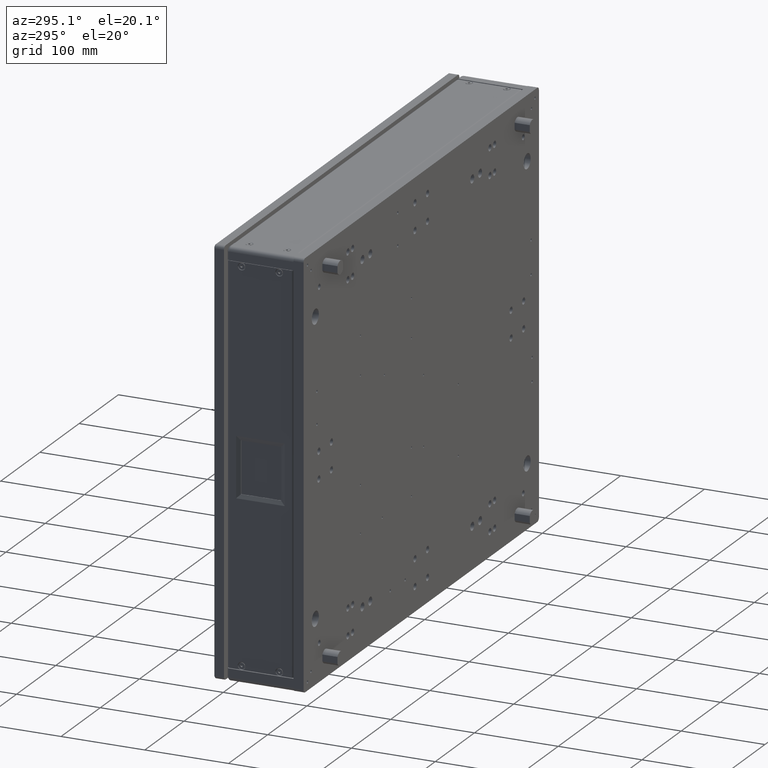
[diagram: clean part render]
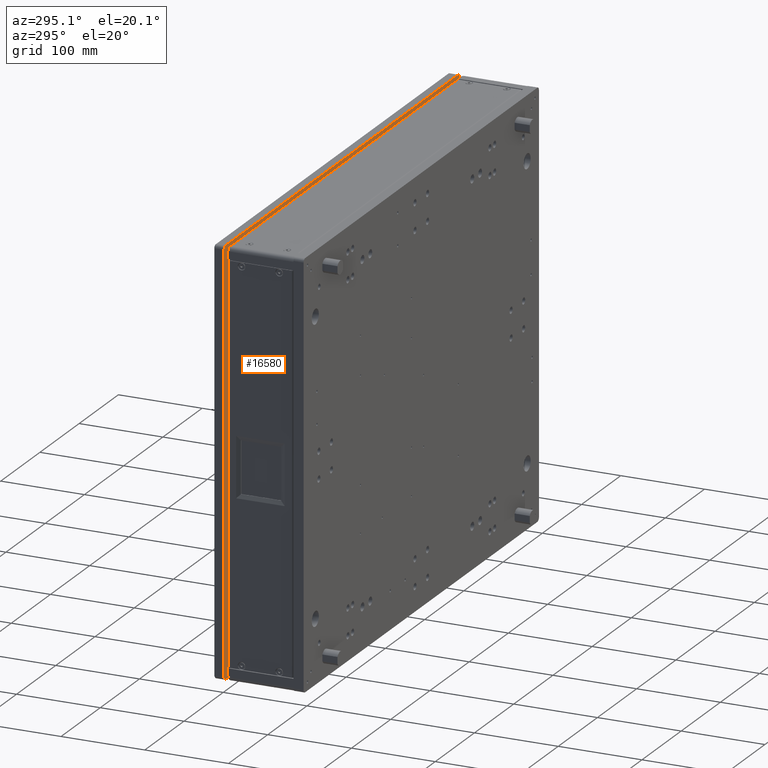
[diagram: same view with one face highlighted and labeled with its STEP entity id]
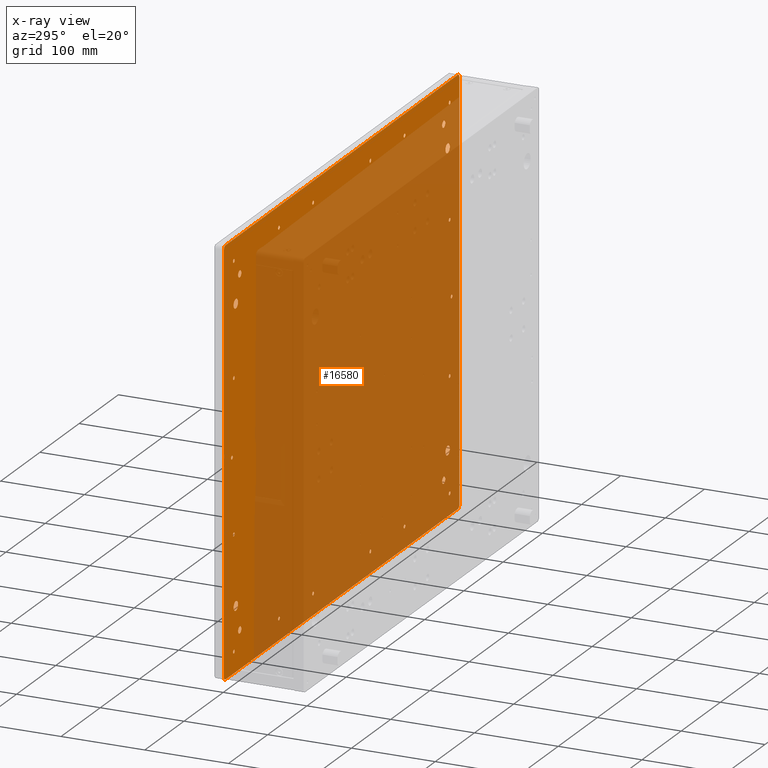
[diagram: x-ray of the same camera — body ghosted, the highlighted face saturated]
A machine part, auxiliary view. The second image highlights one B-rep face of the part: STEP entity #16580.
The next image is the same camera in x-ray: the body ghosted, the highlighted face saturated — about 82% of this face is hidden behind the body in this view.
In plain terms, the highlighted planar face has unit normal (0, -1, 0).
Its self-contained STEP definition (entity closure, byte-faithful):
#120 = AXIS2_PLACEMENT_3D ( 'NONE', #31012, #9649, #10043 ) ;
#465 = CIRCLE ( 'NONE', #11860, 4.000000000000003553 ) ;
#471 = CIRCLE ( 'NONE', #21343, 2.099999999999990763 ) ;
#688 = CIRCLE ( 'NONE', #26612, 4.000000000000003553 ) ;
#835 = DIRECTION ( 'NONE',  ( -2.376672073132158167E-16, 1.000000000000000000, -8.030019939456232739E-17 ) ) ;
#854 = DIRECTION ( 'NONE',  ( 0.000000000000000000, 0.000000000000000000, -1.000000000000000000 ) ) ;
#982 = AXIS2_PLACEMENT_3D ( 'NONE', #38017, #22972, #17039 ) ;
#1137 = CIRCLE ( 'NONE', #31485, 2.099999999999990763 ) ;
#1162 = ORIENTED_EDGE ( 'NONE', *, *, #11024, .T. ) ;
#1223 = DIRECTION ( 'NONE',  ( 0.000000000000000000, 0.000000000000000000, -1.000000000000000000 ) ) ;
#1308 = DIRECTION ( 'NONE',  ( 2.376672073132158167E-16, -1.000000000000000000, 8.030019939456232739E-17 ) ) ;
#1324 = CIRCLE ( 'NONE', #23468, 2.099999999999990763 ) ;
#1492 = EDGE_LOOP ( 'NONE', ( #3912 ) ) ;
#1541 = CARTESIAN_POINT ( 'NONE',  ( -270.5487244020133062, 101.1371811005062824, 320.0000000000001705 ) ) ;
#1546 = DIRECTION ( 'NONE',  ( -2.376672073132158167E-16, 1.000000000000000000, -8.030019939456232739E-17 ) ) ;
#1603 = VERTEX_POINT ( 'NONE', #38442 ) ;
#1666 = VERTEX_POINT ( 'NONE', #38308 ) ;
#1709 = VERTEX_POINT ( 'NONE', #31592 ) ;
#1812 = EDGE_CURVE ( 'NONE', #5385, #5385, #9594, .T. ) ;
#2059 = CARTESIAN_POINT ( 'NONE',  ( -270.5487244020133062, 101.1371811005062824, 317.9000000000002046 ) ) ;
#2290 = DIRECTION ( 'NONE',  ( 0.000000000000000000, 0.000000000000000000, -1.000000000000000000 ) ) ;
#2314 = DIRECTION ( 'NONE',  ( 0.000000000000000000, 0.000000000000000000, -1.000000000000000000 ) ) ;
#2325 = EDGE_LOOP ( 'NONE', ( #34344 ) ) ;
#2421 = CARTESIAN_POINT ( 'NONE',  ( -265.5487244020134199, 101.1371811005062966, 376.5000000000001705 ) ) ;
#2577 = DIRECTION ( 'NONE',  ( -1.066854937725736117E-16, -8.030019939456235204E-17, -1.000000000000000000 ) ) ;
#2624 = AXIS2_PLACEMENT_3D ( 'NONE', #33721, #19081, #854 ) ;
#2669 = FACE_BOUND ( 'NONE', #37529, .T. ) ;
#2723 = DIRECTION ( 'NONE',  ( 0.000000000000000000, 0.000000000000000000, -1.000000000000000000 ) ) ;
#2866 = EDGE_CURVE ( 'NONE', #27012, #16867, #26481, .T. ) ;
#2913 = VERTEX_POINT ( 'NONE', #11439 ) ;
#2938 = CIRCLE ( 'NONE', #22600, 2.099999999999990763 ) ;
#3067 = ORIENTED_EDGE ( 'NONE', *, *, #39010, .T. ) ;
#3634 = CIRCLE ( 'NONE', #25793, 2.099999999999990763 ) ;
#3841 = DIRECTION ( 'NONE',  ( -1.066854937725736117E-16, -8.030019939456235204E-17, -1.000000000000000000 ) ) ;
#3850 = ORIENTED_EDGE ( 'NONE', *, *, #1812, .T. ) ;
#3893 = ORIENTED_EDGE ( 'NONE', *, *, #36674, .T. ) ;
#3912 = ORIENTED_EDGE ( 'NONE', *, *, #11577, .T. ) ;
#4530 = CIRCLE ( 'NONE', #120, 4.000000000000003553 ) ;
#4582 = ORIENTED_EDGE ( 'NONE', *, *, #23823, .T. ) ;
#4869 = EDGE_LOOP ( 'NONE', ( #21661 ) ) ;
#4976 = CARTESIAN_POINT ( 'NONE',  ( -295.5487244020133062, 101.1371811005062966, 553.3565087996971670 ) ) ;
#5085 = DIRECTION ( 'NONE',  ( 2.376672073132158167E-16, -1.000000000000000000, 8.030019939456232739E-17 ) ) ;
#5096 = AXIS2_PLACEMENT_3D ( 'NONE', #18915, #34332, #3841 ) ;
#5385 = VERTEX_POINT ( 'NONE', #2421 ) ;
#5439 = DIRECTION ( 'NONE',  ( 1.066854937725736117E-16, 8.030019939456235204E-17, 1.000000000000000000 ) ) ;
#5461 = DIRECTION ( 'NONE',  ( 0.000000000000000000, 0.000000000000000000, -1.000000000000000000 ) ) ;
#5529 = DIRECTION ( 'NONE',  ( -2.376672073132158167E-16, 1.000000000000000000, -8.030019939456232739E-17 ) ) ;
#5597 = CARTESIAN_POINT ( 'NONE',  ( -68.54872440201322092, 101.1371811005063250, 317.9000000000000909 ) ) ;
#5683 = VERTEX_POINT ( 'NONE', #35989 ) ;
#5698 = DIRECTION ( 'NONE',  ( -2.376672073132158167E-16, 1.000000000000000000, -8.030019939456232739E-17 ) ) ;
#5729 = EDGE_CURVE ( 'NONE', #1603, #1603, #36781, .T. ) ;
#5788 = EDGE_CURVE ( 'NONE', #32288, #32288, #7711, .T. ) ;
#5990 = CARTESIAN_POINT ( 'NONE',  ( 304.4512755979866370, 101.1371811005064103, 299.0000000000001137 ) ) ;
#6063 = CARTESIAN_POINT ( 'NONE',  ( -265.5487244020134199, 101.1371811005062966, 371.0000000000001705 ) ) ;
#6083 = CIRCLE ( 'NONE', #12421, 2.099999999999990763 ) ;
#6439 = FACE_BOUND ( 'NONE', #13416, .T. ) ;
#6656 = EDGE_CURVE ( 'NONE', #17827, #17827, #22305, .T. ) ;
#6723 = CARTESIAN_POINT ( 'NONE',  ( 279.4512755979866938, 101.1371811005064245, 452.9000000000000909 ) ) ;
#6734 = CIRCLE ( 'NONE', #29481, 2.099999999999990763 ) ;
#6817 = CIRCLE ( 'NONE', #35281, 2.099999999999990763 ) ;
#6818 = ORIENTED_EDGE ( 'NONE', *, *, #26282, .T. ) ;
#6869 = VERTEX_POINT ( 'NONE', #37343 ) ;
#7082 = DIRECTION ( 'NONE',  ( 0.000000000000000000, 0.000000000000000000, -1.000000000000000000 ) ) ;
#7154 = CARTESIAN_POINT ( 'NONE',  ( 264.4512755979866938, 101.1371811005064103, 340.0000000000001705 ) ) ;
#7248 = DIRECTION ( 'NONE',  ( 0.000000000000000000, 0.000000000000000000, -1.000000000000000000 ) ) ;
#7531 = VECTOR ( 'NONE', #31819, 1000.000000000000000 ) ;
#7711 = CIRCLE ( 'NONE', #22890, 2.099999999999990763 ) ;
#7883 = DIRECTION ( 'NONE',  ( -2.376672073132158167E-16, 1.000000000000000000, -8.030019939456232739E-17 ) ) ;
#8026 = AXIS2_PLACEMENT_3D ( 'NONE', #24619, #835, #9566 ) ;
#8429 = DIRECTION ( 'NONE',  ( 0.000000000000000000, 0.000000000000000000, -1.000000000000000000 ) ) ;
#8511 = CARTESIAN_POINT ( 'NONE',  ( 279.4512755979866938, 101.1371811005064103, 320.0000000000000568 ) ) ;
#8640 = ORIENTED_EDGE ( 'NONE', *, *, #23672, .T. ) ;
#8675 = AXIS2_PLACEMENT_3D ( 'NONE', #1541, #25919, #10853 ) ;
#8826 = FACE_BOUND ( 'NONE', #10625, .T. ) ;
#9041 = DIRECTION ( 'NONE',  ( 0.000000000000000000, 0.000000000000000000, 1.000000000000000000 ) ) ;
#9424 = FACE_BOUND ( 'NONE', #20169, .T. ) ;
#9566 = DIRECTION ( 'NONE',  ( 0.000000000000000000, 0.000000000000000000, -1.000000000000000000 ) ) ;
#9594 = CIRCLE ( 'NONE', #34258, 5.500000000000005329 ) ;
#9649 = DIRECTION ( 'NONE',  ( 2.376672073132158167E-16, -1.000000000000000000, 8.030019939456232739E-17 ) ) ;
#9784 = CIRCLE ( 'NONE', #30013, 4.000000000000003553 ) ;
#9830 = ORIENTED_EDGE ( 'NONE', *, *, #37081, .T. ) ;
#9903 = CARTESIAN_POINT ( 'NONE',  ( -291.5487244020132493, 101.1371811005063250, 795.0000000000001137 ) ) ;
#9978 = CARTESIAN_POINT ( 'NONE',  ( -68.54872440201322092, 101.1371811005063250, 320.0000000000000568 ) ) ;
#10043 = DIRECTION ( 'NONE',  ( 0.000000000000000000, 0.000000000000000000, -1.000000000000000000 ) ) ;
#10061 = LINE ( 'NONE', #19362, #7531 ) ;
#10067 = VERTEX_POINT ( 'NONE', #36601 ) ;
#10086 = ORIENTED_EDGE ( 'NONE', *, *, #19869, .T. ) ;
#10170 = EDGE_CURVE ( 'NONE', #23343, #23343, #14279, .T. ) ;
#10428 = EDGE_CURVE ( 'NONE', #16649, #35122, #23220, .T. ) ;
#10614 = ORIENTED_EDGE ( 'NONE', *, *, #33082, .T. ) ;
#10625 = EDGE_LOOP ( 'NONE', ( #17945 ) ) ;
#10766 = ORIENTED_EDGE ( 'NONE', *, *, #10170, .T. ) ;
#10853 = DIRECTION ( 'NONE',  ( 0.000000000000000000, 0.000000000000000000, -1.000000000000000000 ) ) ;
#10951 = EDGE_CURVE ( 'NONE', #2913, #2913, #6734, .T. ) ;
#10994 = EDGE_LOOP ( 'NONE', ( #19399 ) ) ;
#11024 = EDGE_CURVE ( 'NONE', #5683, #5683, #6083, .T. ) ;
#11258 = VERTEX_POINT ( 'NONE', #20516 ) ;
#11424 = EDGE_LOOP ( 'NONE', ( #34943 ) ) ;
#11439 = CARTESIAN_POINT ( 'NONE',  ( 77.45127559798673644, 101.1371811005063961, 767.9000000000000909 ) ) ;
#11577 = EDGE_CURVE ( 'NONE', #15009, #15009, #17510, .T. ) ;
#11589 = FACE_BOUND ( 'NONE', #15789, .T. ) ;
#11860 = AXIS2_PLACEMENT_3D ( 'NONE', #37341, #1308, #7248 ) ;
#11986 = FACE_BOUND ( 'NONE', #1492, .T. ) ;
#12147 = ORIENTED_EDGE ( 'NONE', *, *, #21381, .T. ) ;
#12421 = AXIS2_PLACEMENT_3D ( 'NONE', #21729, #5698, #2723 ) ;
#12423 = CIRCLE ( 'NONE', #33888, 4.000000000000003553 ) ;
#12441 = DIRECTION ( 'NONE',  ( -2.376672073132158167E-16, 1.000000000000000000, -8.030019939456232739E-17 ) ) ;
#12557 = CARTESIAN_POINT ( 'NONE',  ( 284.4512755979865801, 101.1371811005064245, 545.0000000000001137 ) ) ;
#12563 = DIRECTION ( 'NONE',  ( -2.376672073132158167E-16, 1.000000000000000000, -8.030019939456232739E-17 ) ) ;
#12846 = EDGE_CURVE ( 'NONE', #6869, #6869, #1137, .T. ) ;
#12865 = VERTEX_POINT ( 'NONE', #28300 ) ;
#12914 = AXIS2_PLACEMENT_3D ( 'NONE', #38751, #16161, #18743 ) ;
#13416 = EDGE_LOOP ( 'NONE', ( #9830 ) ) ;
#13436 = DIRECTION ( 'NONE',  ( 0.000000000000000000, 0.000000000000000000, 1.000000000000000000 ) ) ;
#13462 = ORIENTED_EDGE ( 'NONE', *, *, #21647, .T. ) ;
#13605 = CARTESIAN_POINT ( 'NONE',  ( 164.4512755979867791, 101.1371811005063819, 317.9000000000002046 ) ) ;
#13760 = ORIENTED_EDGE ( 'NONE', *, *, #16749, .T. ) ;
#13774 = CARTESIAN_POINT ( 'NONE',  ( 279.4512755979866938, 101.1371811005064103, 317.9000000000000909 ) ) ;
#13859 = EDGE_CURVE ( 'NONE', #11258, #27012, #10061, .T. ) ;
#13903 = EDGE_CURVE ( 'NONE', #28432, #28432, #6817, .T. ) ;
#13962 = EDGE_CURVE ( 'NONE', #1709, #1709, #38464, .T. ) ;
#14045 = VERTEX_POINT ( 'NONE', #23901 ) ;
#14083 = CARTESIAN_POINT ( 'NONE',  ( 264.4512755979866938, 101.1371811005064103, 336.0000000000001705 ) ) ;
#14213 = CARTESIAN_POINT ( 'NONE',  ( -155.5487244020133346, 101.1371811005063108, 320.0000000000001705 ) ) ;
#14239 = DIRECTION ( 'NONE',  ( 0.000000000000000000, 0.000000000000000000, -1.000000000000000000 ) ) ;
#14279 = CIRCLE ( 'NONE', #23757, 2.099999999999990763 ) ;
#14532 = ORIENTED_EDGE ( 'NONE', *, *, #16356, .T. ) ;
#14946 = CARTESIAN_POINT ( 'NONE',  ( 304.4512755979866938, 101.1371811005064529, 791.0000000000001137 ) ) ;
#14970 = EDGE_CURVE ( 'NONE', #38537, #38537, #22179, .T. ) ;
#15009 = VERTEX_POINT ( 'NONE', #29646 ) ;
#15056 = CARTESIAN_POINT ( 'NONE',  ( -255.5487244020133062, 101.1371811005063250, 746.0000000000002274 ) ) ;
#15354 = FACE_OUTER_BOUND ( 'NONE', #22741, .T. ) ;
#15425 = EDGE_LOOP ( 'NONE', ( #1162 ) ) ;
#15554 = CARTESIAN_POINT ( 'NONE',  ( -295.5487244020132493, 101.1371811005063250, 791.0000000000001137 ) ) ;
#15562 = AXIS2_PLACEMENT_3D ( 'NONE', #23035, #20258, #38078 ) ;
#15656 = CARTESIAN_POINT ( 'NONE',  ( -65.92273067638645045, 101.1371811005063677, 795.0000000000001137 ) ) ;
#15733 = DIRECTION ( 'NONE',  ( 0.000000000000000000, 0.000000000000000000, -1.000000000000000000 ) ) ;
#15761 = EDGE_LOOP ( 'NONE', ( #33265 ) ) ;
#15789 = EDGE_LOOP ( 'NONE', ( #25672 ) ) ;
#15935 = VERTEX_POINT ( 'NONE', #27626 ) ;
#16161 = DIRECTION ( 'NONE',  ( -2.376672073132158167E-16, 1.000000000000000000, -8.030019939456232739E-17 ) ) ;
#16208 = EDGE_CURVE ( 'NONE', #35122, #11258, #4530, .T. ) ;
#16356 = EDGE_CURVE ( 'NONE', #15935, #15935, #688, .T. ) ;
#16580 = ADVANCED_FACE ( 'NONE', ( #15354, #11589, #27047, #38726, #8826, #27427, #36530, #24473, #17931, #2669, #9424, #6439, #23682, #35749, #11986, #18135, #20705, #24074, #36139, #32768, #26841, #38926, #21096, #33158, #25440, #25052, #30972 ), #37116, .T. ) ;
#16644 = AXIS2_PLACEMENT_3D ( 'NONE', #22337, #25921, #31240 ) ;
#16649 = VERTEX_POINT ( 'NONE', #15554 ) ;
#16684 = ORIENTED_EDGE ( 'NONE', *, *, #16208, .T. ) ;
#16713 = AXIS2_PLACEMENT_3D ( 'NONE', #17003, #7883, #13436 ) ;
#16749 = EDGE_CURVE ( 'NONE', #24464, #24464, #33560, .T. ) ;
#16867 = VERTEX_POINT ( 'NONE', #5990 ) ;
#17003 = CARTESIAN_POINT ( 'NONE',  ( 274.4512755979866938, 101.1371811005064387, 719.0000000000000000 ) ) ;
#17039 = DIRECTION ( 'NONE',  ( 0.000000000000000000, 0.000000000000000000, -1.000000000000000000 ) ) ;
#17164 = DIRECTION ( 'NONE',  ( -2.376672073132158167E-16, 1.000000000000000000, -8.030019939456232739E-17 ) ) ;
#17412 = CIRCLE ( 'NONE', #982, 2.099999999999990763 ) ;
#17444 = VERTEX_POINT ( 'NONE', #9903 ) ;
#17510 = CIRCLE ( 'NONE', #8026, 2.099999999999990763 ) ;
#17536 = CARTESIAN_POINT ( 'NONE',  ( 264.4512755979866938, 101.1371811005064387, 746.0000000000001137 ) ) ;
#17713 = EDGE_LOOP ( 'NONE', ( #13462 ) ) ;
#17827 = VERTEX_POINT ( 'NONE', #15056 ) ;
#17931 = FACE_BOUND ( 'NONE', #15425, .T. ) ;
#17945 = ORIENTED_EDGE ( 'NONE', *, *, #12846, .T. ) ;
#18062 = DIRECTION ( 'NONE',  ( 0.000000000000000000, 0.000000000000000000, -1.000000000000000000 ) ) ;
#18135 = FACE_BOUND ( 'NONE', #23651, .T. ) ;
#18570 = CARTESIAN_POINT ( 'NONE',  ( 77.45127559798673644, 101.1371811005063961, 770.0000000000001137 ) ) ;
#18743 = DIRECTION ( 'NONE',  ( 0.000000000000000000, 0.000000000000000000, 1.000000000000000000 ) ) ;
#18915 = CARTESIAN_POINT ( 'NONE',  ( -65.92273067638647888, 101.1371811005063392, 553.3565087996971670 ) ) ;
#19081 = DIRECTION ( 'NONE',  ( -2.376672073132158167E-16, 1.000000000000000000, -8.030019939456232739E-17 ) ) ;
#19243 = DIRECTION ( 'NONE',  ( -2.376672073132158167E-16, 1.000000000000000000, -8.030019939456232739E-17 ) ) ;
#19277 = DIRECTION ( 'NONE',  ( 0.000000000000000000, 0.000000000000000000, -1.000000000000000000 ) ) ;
#19325 = EDGE_LOOP ( 'NONE', ( #3850 ) ) ;
#19362 = CARTESIAN_POINT ( 'NONE',  ( -65.92273067638650730, 101.1371811005063250, 295.0000000000001705 ) ) ;
#19392 = EDGE_LOOP ( 'NONE', ( #13760 ) ) ;
#19399 = ORIENTED_EDGE ( 'NONE', *, *, #14970, .T. ) ;
#19869 = EDGE_CURVE ( 'NONE', #35847, #35847, #17412, .T. ) ;
#19887 = VERTEX_POINT ( 'NONE', #13774 ) ;
#20010 = VERTEX_POINT ( 'NONE', #14083 ) ;
#20027 = CARTESIAN_POINT ( 'NONE',  ( 284.4512755979865801, 101.1371811005064245, 542.9000000000002046 ) ) ;
#20169 = EDGE_LOOP ( 'NONE', ( #30568 ) ) ;
#20258 = DIRECTION ( 'NONE',  ( -2.376672073132158167E-16, 1.000000000000000000, -8.030019939456232739E-17 ) ) ;
#20310 = ORIENTED_EDGE ( 'NONE', *, *, #22013, .T. ) ;
#20510 = CIRCLE ( 'NONE', #12914, 5.500000000000005329 ) ;
#20516 = CARTESIAN_POINT ( 'NONE',  ( -291.5487244020132493, 101.1371811005062824, 295.0000000000001705 ) ) ;
#20705 = FACE_BOUND ( 'NONE', #21688, .T. ) ;
#20739 = ORIENTED_EDGE ( 'NONE', *, *, #5788, .T. ) ;
#21096 = FACE_BOUND ( 'NONE', #32237, .T. ) ;
#21343 = AXIS2_PLACEMENT_3D ( 'NONE', #24455, #12563, #15733 ) ;
#21381 = EDGE_CURVE ( 'NONE', #28487, #28487, #28703, .T. ) ;
#21422 = DIRECTION ( 'NONE',  ( -2.376672073132158167E-16, 1.000000000000000000, -8.030019939456232739E-17 ) ) ;
#21647 = EDGE_CURVE ( 'NONE', #12865, #12865, #20510, .T. ) ;
#21661 = ORIENTED_EDGE ( 'NONE', *, *, #10951, .T. ) ;
#21673 = CARTESIAN_POINT ( 'NONE',  ( -265.5487244020132493, 101.1371811005063250, 724.5000000000002274 ) ) ;
#21688 = EDGE_LOOP ( 'NONE', ( #25412 ) ) ;
#21729 = CARTESIAN_POINT ( 'NONE',  ( 164.4512755979867222, 101.1371811005064103, 770.0000000000001137 ) ) ;
#21778 = LINE ( 'NONE', #15656, #36329 ) ;
#21890 = CIRCLE ( 'NONE', #15562, 2.099999999999990763 ) ;
#21997 = AXIS2_PLACEMENT_3D ( 'NONE', #38746, #29054, #2314 ) ;
#22013 = EDGE_CURVE ( 'NONE', #25338, #25338, #37843, .T. ) ;
#22098 = EDGE_LOOP ( 'NONE', ( #10766 ) ) ;
#22179 = CIRCLE ( 'NONE', #28477, 4.000000000000003553 ) ;
#22239 = DIRECTION ( 'NONE',  ( -2.376672073132158167E-16, 1.000000000000000000, -8.030019939456232739E-17 ) ) ;
#22288 = EDGE_LOOP ( 'NONE', ( #12147 ) ) ;
#22305 = CIRCLE ( 'NONE', #16644, 4.000000000000003553 ) ;
#22337 = CARTESIAN_POINT ( 'NONE',  ( -255.5487244020133062, 101.1371811005063250, 750.0000000000002274 ) ) ;
#22600 = AXIS2_PLACEMENT_3D ( 'NONE', #38722, #38138, #8429 ) ;
#22741 = EDGE_LOOP ( 'NONE', ( #31188, #16684, #23710, #32946, #4582, #3893, #6818, #8640 ) ) ;
#22783 = VERTEX_POINT ( 'NONE', #32457 ) ;
#22890 = AXIS2_PLACEMENT_3D ( 'NONE', #12557, #22239, #34311 ) ;
#22972 = DIRECTION ( 'NONE',  ( -2.376672073132158167E-16, 1.000000000000000000, -8.030019939456232739E-17 ) ) ;
#23035 = CARTESIAN_POINT ( 'NONE',  ( -275.5487244020131357, 101.1371811005063108, 545.0000000000001137 ) ) ;
#23144 = EDGE_LOOP ( 'NONE', ( #10086 ) ) ;
#23220 = LINE ( 'NONE', #4976, #24388 ) ;
#23343 = VERTEX_POINT ( 'NONE', #25931 ) ;
#23443 = DIRECTION ( 'NONE',  ( -2.376672073132158167E-16, 1.000000000000000000, -8.030019939456232739E-17 ) ) ;
#23468 = AXIS2_PLACEMENT_3D ( 'NONE', #28667, #1546, #14239 ) ;
#23543 = EDGE_LOOP ( 'NONE', ( #20310 ) ) ;
#23651 = EDGE_LOOP ( 'NONE', ( #26249 ) ) ;
#23672 = EDGE_CURVE ( 'NONE', #17444, #16649, #465, .T. ) ;
#23682 = FACE_BOUND ( 'NONE', #23543, .T. ) ;
#23710 = ORIENTED_EDGE ( 'NONE', *, *, #13859, .T. ) ;
#23757 = AXIS2_PLACEMENT_3D ( 'NONE', #27966, #24999, #37069 ) ;
#23823 = EDGE_CURVE ( 'NONE', #16867, #33424, #35542, .T. ) ;
#23901 = CARTESIAN_POINT ( 'NONE',  ( 300.4512755979867507, 101.1371811005064529, 795.0000000000001137 ) ) ;
#24074 = FACE_BOUND ( 'NONE', #34001, .T. ) ;
#24388 = VECTOR ( 'NONE', #2577, 1000.000000000000000 ) ;
#24455 = CARTESIAN_POINT ( 'NONE',  ( 279.4512755979866938, 101.1371811005064387, 770.0000000000001137 ) ) ;
#24464 = VERTEX_POINT ( 'NONE', #21673 ) ;
#24473 = FACE_BOUND ( 'NONE', #4869, .T. ) ;
#24619 = CARTESIAN_POINT ( 'NONE',  ( 279.4512755979866938, 101.1371811005064387, 635.0000000000001137 ) ) ;
#24999 = DIRECTION ( 'NONE',  ( -2.376672073132158167E-16, 1.000000000000000000, -8.030019939456232739E-17 ) ) ;
#25052 = FACE_BOUND ( 'NONE', #19325, .T. ) ;
#25338 = VERTEX_POINT ( 'NONE', #6723 ) ;
#25412 = ORIENTED_EDGE ( 'NONE', *, *, #13962, .T. ) ;
#25440 = FACE_BOUND ( 'NONE', #17713, .T. ) ;
#25672 = ORIENTED_EDGE ( 'NONE', *, *, #13903, .T. ) ;
#25768 = CIRCLE ( 'NONE', #8675, 2.099999999999990763 ) ;
#25793 = AXIS2_PLACEMENT_3D ( 'NONE', #9978, #31141, #19277 ) ;
#25919 = DIRECTION ( 'NONE',  ( -2.376672073132158167E-16, 1.000000000000000000, -8.030019939456232739E-17 ) ) ;
#25921 = DIRECTION ( 'NONE',  ( -2.376672073132158167E-16, 1.000000000000000000, -8.030019939456232739E-17 ) ) ;
#25931 = CARTESIAN_POINT ( 'NONE',  ( 77.45127559798669381, 101.1371811005063535, 317.9000000000000909 ) ) ;
#26249 = ORIENTED_EDGE ( 'NONE', *, *, #33500, .T. ) ;
#26282 = EDGE_CURVE ( 'NONE', #14045, #17444, #21778, .T. ) ;
#26296 = DIRECTION ( 'NONE',  ( 0.000000000000000000, 0.000000000000000000, -1.000000000000000000 ) ) ;
#26453 = AXIS2_PLACEMENT_3D ( 'NONE', #38899, #38523, #27023 ) ;
#26481 = CIRCLE ( 'NONE', #34065, 4.000000000000003553 ) ;
#26612 = AXIS2_PLACEMENT_3D ( 'NONE', #37754, #17164, #2290 ) ;
#26841 = FACE_BOUND ( 'NONE', #15761, .T. ) ;
#27012 = VERTEX_POINT ( 'NONE', #29613 ) ;
#27023 = DIRECTION ( 'NONE',  ( 0.000000000000000000, 0.000000000000000000, -1.000000000000000000 ) ) ;
#27047 = FACE_BOUND ( 'NONE', #22098, .T. ) ;
#27059 = DIRECTION ( 'NONE',  ( -2.376672073132158167E-16, 1.000000000000000000, -8.030019939456232739E-17 ) ) ;
#27191 = VERTEX_POINT ( 'NONE', #29371 ) ;
#27427 = FACE_BOUND ( 'NONE', #38628, .T. ) ;
#27626 = CARTESIAN_POINT ( 'NONE',  ( -255.5487244020133630, 101.1371811005062966, 336.0000000000001705 ) ) ;
#27729 = DIRECTION ( 'NONE',  ( -1.000000000000000000, -2.376672073132158167E-16, 1.066854937725736363E-16 ) ) ;
#27966 = CARTESIAN_POINT ( 'NONE',  ( 77.45127559798669381, 101.1371811005063535, 320.0000000000000568 ) ) ;
#28300 = CARTESIAN_POINT ( 'NONE',  ( 274.4512755979865801, 101.1371811005064103, 376.5000000000000000 ) ) ;
#28432 = VERTEX_POINT ( 'NONE', #13605 ) ;
#28477 = AXIS2_PLACEMENT_3D ( 'NONE', #32886, #21422, #18062 ) ;
#28487 = VERTEX_POINT ( 'NONE', #34629 ) ;
#28667 = CARTESIAN_POINT ( 'NONE',  ( -270.5487244020131925, 101.1371811005063108, 635.0000000000002274 ) ) ;
#28703 = CIRCLE ( 'NONE', #16713, 5.500000000000060396 ) ;
#28914 = AXIS2_PLACEMENT_3D ( 'NONE', #8511, #5529, #29682 ) ;
#28992 = CARTESIAN_POINT ( 'NONE',  ( -265.5487244020132493, 101.1371811005063250, 719.0000000000002274 ) ) ;
#29054 = DIRECTION ( 'NONE',  ( -2.376672073132158167E-16, 1.000000000000000000, -8.030019939456232739E-17 ) ) ;
#29184 = VERTEX_POINT ( 'NONE', #2059 ) ;
#29371 = CARTESIAN_POINT ( 'NONE',  ( 279.4512755979866938, 101.1371811005064387, 767.9000000000000909 ) ) ;
#29445 = EDGE_LOOP ( 'NONE', ( #20739 ) ) ;
#29481 = AXIS2_PLACEMENT_3D ( 'NONE', #18570, #12441, #33607 ) ;
#29613 = CARTESIAN_POINT ( 'NONE',  ( 300.4512755979866938, 101.1371811005064103, 295.0000000000001137 ) ) ;
#29646 = CARTESIAN_POINT ( 'NONE',  ( 279.4512755979866938, 101.1371811005064387, 632.9000000000000909 ) ) ;
#29682 = DIRECTION ( 'NONE',  ( 0.000000000000000000, 0.000000000000000000, -1.000000000000000000 ) ) ;
#29788 = CARTESIAN_POINT ( 'NONE',  ( 304.4512755979866370, 101.1371811005064387, 553.3565087996971670 ) ) ;
#30013 = AXIS2_PLACEMENT_3D ( 'NONE', #7154, #19243, #1223 ) ;
#30085 = CARTESIAN_POINT ( 'NONE',  ( -295.5487244020133062, 101.1371811005062824, 299.0000000000001705 ) ) ;
#30568 = ORIENTED_EDGE ( 'NONE', *, *, #32415, .T. ) ;
#30972 = FACE_BOUND ( 'NONE', #19392, .T. ) ;
#31012 = CARTESIAN_POINT ( 'NONE',  ( -291.5487244020132493, 101.1371811005062824, 299.0000000000001705 ) ) ;
#31141 = DIRECTION ( 'NONE',  ( -2.376672073132158167E-16, 1.000000000000000000, -8.030019939456232739E-17 ) ) ;
#31188 = ORIENTED_EDGE ( 'NONE', *, *, #10428, .T. ) ;
#31240 = DIRECTION ( 'NONE',  ( 0.000000000000000000, 0.000000000000000000, -1.000000000000000000 ) ) ;
#31427 = CARTESIAN_POINT ( 'NONE',  ( 164.4512755979867791, 101.1371811005063819, 320.0000000000001705 ) ) ;
#31485 = AXIS2_PLACEMENT_3D ( 'NONE', #14213, #35379, #5461 ) ;
#31592 = CARTESIAN_POINT ( 'NONE',  ( -270.5487244020132493, 101.1371811005063250, 767.9000000000000909 ) ) ;
#31819 = DIRECTION ( 'NONE',  ( 1.000000000000000000, 2.376672073132158167E-16, -1.066854937725736363E-16 ) ) ;
#31898 = DIRECTION ( 'NONE',  ( 0.000000000000000000, 0.000000000000000000, -1.000000000000000000 ) ) ;
#32237 = EDGE_LOOP ( 'NONE', ( #14532 ) ) ;
#32288 = VERTEX_POINT ( 'NONE', #20027 ) ;
#32415 = EDGE_CURVE ( 'NONE', #1666, #1666, #21890, .T. ) ;
#32457 = CARTESIAN_POINT ( 'NONE',  ( -270.5487244020131925, 101.1371811005062966, 452.9000000000000909 ) ) ;
#32725 = VERTEX_POINT ( 'NONE', #5597 ) ;
#32768 = FACE_BOUND ( 'NONE', #2325, .T. ) ;
#32807 = CARTESIAN_POINT ( 'NONE',  ( 300.4512755979867507, 101.1371811005064529, 791.0000000000001137 ) ) ;
#32886 = CARTESIAN_POINT ( 'NONE',  ( 264.4512755979866938, 101.1371811005064387, 750.0000000000001137 ) ) ;
#32946 = ORIENTED_EDGE ( 'NONE', *, *, #2866, .T. ) ;
#33082 = EDGE_CURVE ( 'NONE', #19887, #19887, #35865, .T. ) ;
#33158 = FACE_BOUND ( 'NONE', #22288, .T. ) ;
#33253 = EDGE_CURVE ( 'NONE', #29184, #29184, #25768, .T. ) ;
#33265 = ORIENTED_EDGE ( 'NONE', *, *, #6656, .T. ) ;
#33424 = VERTEX_POINT ( 'NONE', #14946 ) ;
#33500 = EDGE_CURVE ( 'NONE', #27191, #27191, #471, .T. ) ;
#33560 = CIRCLE ( 'NONE', #38635, 5.500000000000060396 ) ;
#33607 = DIRECTION ( 'NONE',  ( 0.000000000000000000, 0.000000000000000000, -1.000000000000000000 ) ) ;
#33622 = EDGE_CURVE ( 'NONE', #32725, #32725, #3634, .T. ) ;
#33721 = CARTESIAN_POINT ( 'NONE',  ( -155.5487244020132778, 101.1371811005063392, 770.0000000000001137 ) ) ;
#33888 = AXIS2_PLACEMENT_3D ( 'NONE', #32807, #34677, #31898 ) ;
#34001 = EDGE_LOOP ( 'NONE', ( #10614 ) ) ;
#34065 = AXIS2_PLACEMENT_3D ( 'NONE', #35389, #5085, #26296 ) ;
#34258 = AXIS2_PLACEMENT_3D ( 'NONE', #6063, #27059, #9041 ) ;
#34311 = DIRECTION ( 'NONE',  ( 0.000000000000000000, 0.000000000000000000, -1.000000000000000000 ) ) ;
#34332 = DIRECTION ( 'NONE',  ( 2.376672073132158167E-16, -1.000000000000000000, 8.030019939456232739E-17 ) ) ;
#34344 = ORIENTED_EDGE ( 'NONE', *, *, #37887, .T. ) ;
#34629 = CARTESIAN_POINT ( 'NONE',  ( 274.4512755979866938, 101.1371811005064387, 724.5000000000000000 ) ) ;
#34677 = DIRECTION ( 'NONE',  ( 2.376672073132158167E-16, -1.000000000000000000, 8.030019939456232739E-17 ) ) ;
#34943 = ORIENTED_EDGE ( 'NONE', *, *, #33253, .T. ) ;
#35122 = VERTEX_POINT ( 'NONE', #30085 ) ;
#35281 = AXIS2_PLACEMENT_3D ( 'NONE', #31427, #37561, #7082 ) ;
#35379 = DIRECTION ( 'NONE',  ( -2.376672073132158167E-16, 1.000000000000000000, -8.030019939456232739E-17 ) ) ;
#35389 = CARTESIAN_POINT ( 'NONE',  ( 300.4512755979866938, 101.1371811005064103, 299.0000000000001137 ) ) ;
#35392 = ORIENTED_EDGE ( 'NONE', *, *, #5729, .T. ) ;
#35542 = LINE ( 'NONE', #29788, #39064 ) ;
#35604 = EDGE_LOOP ( 'NONE', ( #35996 ) ) ;
#35749 = FACE_BOUND ( 'NONE', #29445, .T. ) ;
#35847 = VERTEX_POINT ( 'NONE', #36428 ) ;
#35865 = CIRCLE ( 'NONE', #28914, 2.099999999999990763 ) ;
#35989 = CARTESIAN_POINT ( 'NONE',  ( 164.4512755979867222, 101.1371811005064103, 767.9000000000000909 ) ) ;
#35996 = ORIENTED_EDGE ( 'NONE', *, *, #33622, .T. ) ;
#36139 = FACE_BOUND ( 'NONE', #11424, .T. ) ;
#36329 = VECTOR ( 'NONE', #27729, 1000.000000000000000 ) ;
#36428 = CARTESIAN_POINT ( 'NONE',  ( -68.54872440201326356, 101.1371811005063535, 767.9000000000000909 ) ) ;
#36530 = FACE_BOUND ( 'NONE', #23144, .T. ) ;
#36601 = CARTESIAN_POINT ( 'NONE',  ( -270.5487244020131925, 101.1371811005063108, 632.9000000000002046 ) ) ;
#36674 = EDGE_CURVE ( 'NONE', #33424, #14045, #12423, .T. ) ;
#36781 = CIRCLE ( 'NONE', #2624, 2.099999999999990763 ) ;
#37069 = DIRECTION ( 'NONE',  ( 0.000000000000000000, 0.000000000000000000, -1.000000000000000000 ) ) ;
#37081 = EDGE_CURVE ( 'NONE', #22783, #22783, #2938, .T. ) ;
#37116 = PLANE ( 'NONE',  #5096 ) ;
#37341 = CARTESIAN_POINT ( 'NONE',  ( -291.5487244020132493, 101.1371811005063250, 791.0000000000001137 ) ) ;
#37343 = CARTESIAN_POINT ( 'NONE',  ( -155.5487244020133346, 101.1371811005063108, 317.9000000000002046 ) ) ;
#37529 = EDGE_LOOP ( 'NONE', ( #3067 ) ) ;
#37561 = DIRECTION ( 'NONE',  ( -2.376672073132158167E-16, 1.000000000000000000, -8.030019939456232739E-17 ) ) ;
#37754 = CARTESIAN_POINT ( 'NONE',  ( -255.5487244020133630, 101.1371811005062966, 340.0000000000001705 ) ) ;
#37843 = CIRCLE ( 'NONE', #26453, 2.099999999999990763 ) ;
#37887 = EDGE_CURVE ( 'NONE', #20010, #20010, #9784, .T. ) ;
#38017 = CARTESIAN_POINT ( 'NONE',  ( -68.54872440201326356, 101.1371811005063535, 770.0000000000001137 ) ) ;
#38078 = DIRECTION ( 'NONE',  ( 0.000000000000000000, 0.000000000000000000, -1.000000000000000000 ) ) ;
#38138 = DIRECTION ( 'NONE',  ( -2.376672073132158167E-16, 1.000000000000000000, -8.030019939456232739E-17 ) ) ;
#38308 = CARTESIAN_POINT ( 'NONE',  ( -275.5487244020131357, 101.1371811005063108, 542.9000000000002046 ) ) ;
#38442 = CARTESIAN_POINT ( 'NONE',  ( -155.5487244020132778, 101.1371811005063392, 767.9000000000000909 ) ) ;
#38464 = CIRCLE ( 'NONE', #21997, 2.099999999999990763 ) ;
#38502 = DIRECTION ( 'NONE',  ( 0.000000000000000000, 0.000000000000000000, 1.000000000000000000 ) ) ;
#38523 = DIRECTION ( 'NONE',  ( -2.376672073132158167E-16, 1.000000000000000000, -8.030019939456232739E-17 ) ) ;
#38537 = VERTEX_POINT ( 'NONE', #17536 ) ;
#38628 = EDGE_LOOP ( 'NONE', ( #35392 ) ) ;
#38635 = AXIS2_PLACEMENT_3D ( 'NONE', #28992, #23443, #38502 ) ;
#38722 = CARTESIAN_POINT ( 'NONE',  ( -270.5487244020131925, 101.1371811005062966, 455.0000000000000568 ) ) ;
#38726 = FACE_BOUND ( 'NONE', #35604, .T. ) ;
#38746 = CARTESIAN_POINT ( 'NONE',  ( -270.5487244020132493, 101.1371811005063250, 770.0000000000001137 ) ) ;
#38751 = CARTESIAN_POINT ( 'NONE',  ( 274.4512755979865801, 101.1371811005064103, 371.0000000000000000 ) ) ;
#38899 = CARTESIAN_POINT ( 'NONE',  ( 279.4512755979866938, 101.1371811005064245, 455.0000000000000568 ) ) ;
#38926 = FACE_BOUND ( 'NONE', #10994, .T. ) ;
#39010 = EDGE_CURVE ( 'NONE', #10067, #10067, #1324, .T. ) ;
#39064 = VECTOR ( 'NONE', #5439, 1000.000000000000000 ) ;